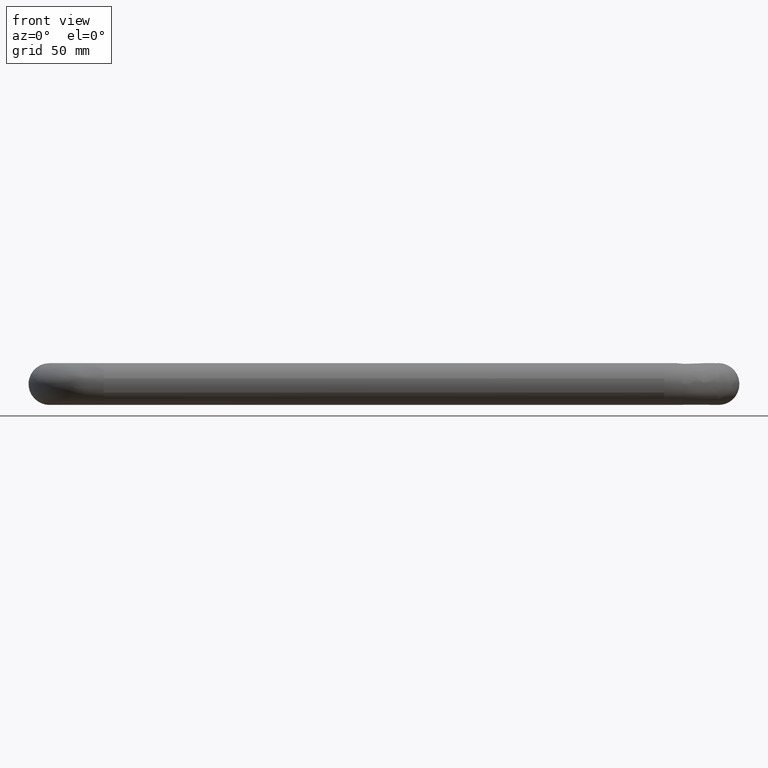
[diagram: clean part render]
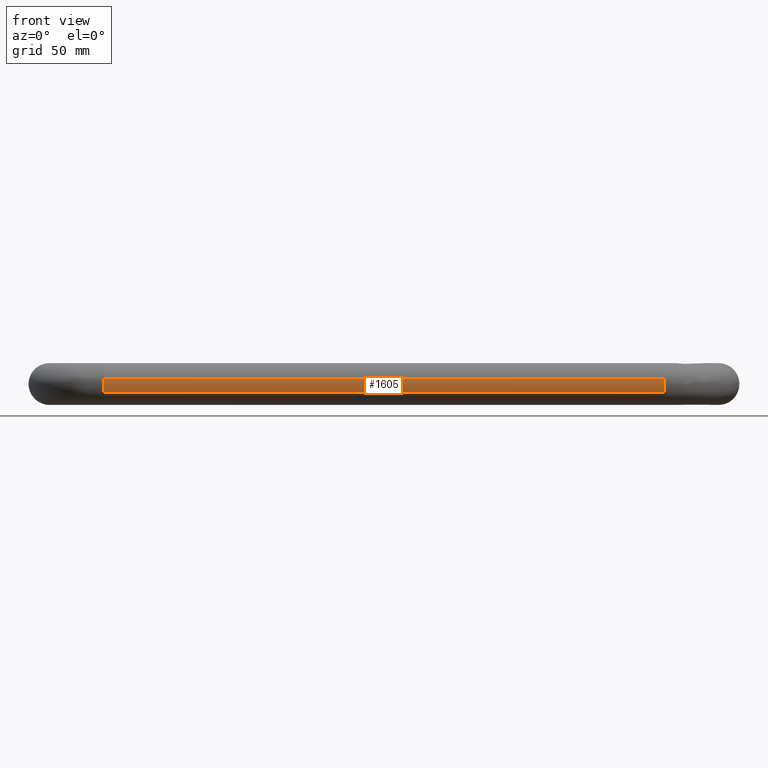
[diagram: same view with one face highlighted and labeled with its STEP entity id]
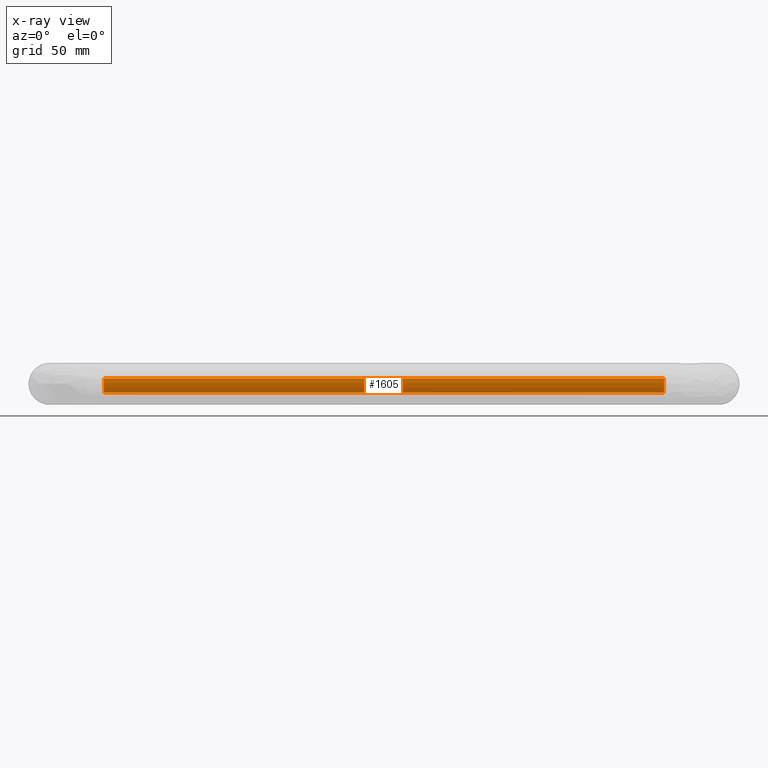
[diagram: x-ray of the same camera — body ghosted, the highlighted face saturated]
A machine part, front view. The second image highlights one B-rep face of the part: STEP entity #1605.
The next image is the same camera in x-ray: the body ghosted, the highlighted face saturated — about 0% of this face is hidden behind the body in this view.
In plain terms, the highlighted face is a freeform B-spline surface patch.
Its self-contained STEP definition (entity closure, byte-faithful):
#1386=CARTESIAN_POINT('',(367.499999999861190,-98.936217568713488,-5.046080431050863));
#1387=VERTEX_POINT('',#1386);
#1403=CARTESIAN_POINT('',(32.500000000000000,-98.936217568845137,-5.046080431189905));
#1404=VERTEX_POINT('',#1403);
#1405=CARTESIAN_POINT('',(32.500000000000000,-98.936217568845137,-5.046080431189905));
#1406=CARTESIAN_POINT('',(367.499999999861190,-98.936217568713488,-5.046080431050863));
#1407=QUASI_UNIFORM_CURVE('',1,(#1405,#1406),.UNSPECIFIED.,.F.,.U.);
#1408=EDGE_CURVE('',#1404,#1387,#1407,.T.);
#1472=CARTESIAN_POINT('',(32.500000000000000,-99.545380664979035,3.340479701442447));
#1473=VERTEX_POINT('',#1472);
#1487=CARTESIAN_POINT('',(367.500000000000000,-99.545380664979035,3.340479701442447));
#1488=VERTEX_POINT('',#1487);
#1489=CARTESIAN_POINT('',(32.500000000000000,-99.545380664979035,3.340479701442447));
#1490=CARTESIAN_POINT('',(367.500000000000000,-99.545380664979035,3.340479701442447));
#1491=QUASI_UNIFORM_CURVE('',1,(#1489,#1490),.UNSPECIFIED.,.F.,.U.);
#1492=EDGE_CURVE('',#1473,#1488,#1491,.T.);
#1557=CARTESIAN_POINT('',(24.124999997582432,-99.545380665107785,3.340479700978208));
#1558=CARTESIAN_POINT('',(24.124999997582428,-100.738448257974080,-0.961583056975440));
#1559=CARTESIAN_POINT('',(24.124999997582421,-98.936217568948393,-5.046080430955922));
#1560=CARTESIAN_POINT('',(376.084375000060500,-99.545380665107785,3.340479700978208));
#1561=CARTESIAN_POINT('',(376.084375000060500,-100.738448257974080,-0.961583056975440));
#1562=CARTESIAN_POINT('',(376.084375000060560,-98.936217568948393,-5.046080430955922));
#1570=(BOUNDED_SURFACE()B_SPLINE_SURFACE(2,1,((#1557,#1560),(#1558,#1561),(#1559,#1562)),.UNSPECIFIED.,.F.,.F.,.U.)B_SPLINE_SURFACE_WITH_KNOTS((3,3),(2,2),(0.0,9.090239577217549),(0.0,351.959375002478110),.UNSPECIFIED.)GEOMETRIC_REPRESENTATION_ITEM()RATIONAL_B_SPLINE_SURFACE(((1.0,1.0),(0.871126983722081,0.871126983722081),(0.855662221768731,0.855662221768731)))REPRESENTATION_ITEM('')SURFACE());
#1571=CARTESIAN_POINT('',(367.500000000000000,-99.545380664979035,3.340479701442448));
#1572=CARTESIAN_POINT('',(367.499999999999940,-99.999999999999986,1.701175339017228));
#1573=CARTESIAN_POINT('',(367.500000000000000,-99.999999999999986,0.0));
#1574=CARTESIAN_POINT('',(367.500000000000000,-99.999999999999986,-2.635170122638260));
#1575=CARTESIAN_POINT('',(367.499999999861190,-98.936217568713502,-5.046080431050863));
#1583=(BOUNDED_CURVE()B_SPLINE_CURVE(2,(#1571,#1572,#1573,#1574,#1575),.UNSPECIFIED.,.F.,.U.)B_SPLINE_CURVE_WITH_KNOTS((3,2,3),(0.204451173353575,0.250000000000000,0.318548117651566),.UNSPECIFIED.)CURVE()GEOMETRIC_REPRESENTATION_ITEM()RATIONAL_B_SPLINE_CURVE((0.912717717200867,0.946636230201411,1.0,0.919690884709718,0.883422078886728))REPRESENTATION_ITEM(''));
#1584=EDGE_CURVE('',#1488,#1387,#1583,.T.);
#1585=ORIENTED_EDGE('',*,*,#1584,.F.);
#1586=ORIENTED_EDGE('',*,*,#1492,.F.);
#1587=CARTESIAN_POINT('',(32.500000000000000,-99.545380664979035,3.340479701442448));
#1588=CARTESIAN_POINT('',(32.500000000000000,-99.999999999999986,1.701175339017228));
#1589=CARTESIAN_POINT('',(32.500000000000000,-99.999999999999986,0.0));
#1590=CARTESIAN_POINT('',(32.500000000000000,-99.999999999999986,-2.635170122917379));
#1591=CARTESIAN_POINT('',(32.500000000000000,-98.936217568845152,-5.046080431189905));
#1599=(BOUNDED_CURVE()B_SPLINE_CURVE(2,(#1587,#1588,#1589,#1590,#1591),.UNSPECIFIED.,.F.,.U.)B_SPLINE_CURVE_WITH_KNOTS((3,2,3),(0.204451173353575,0.250000000000000,0.318548117658244),.UNSPECIFIED.)CURVE()GEOMETRIC_REPRESENTATION_ITEM()RATIONAL_B_SPLINE_CURVE((0.912717717200867,0.946636230201411,1.0,0.919690884701895,0.883422078879661))REPRESENTATION_ITEM(''));
#1600=EDGE_CURVE('',#1473,#1404,#1599,.T.);
#1601=ORIENTED_EDGE('',*,*,#1600,.T.);
#1602=ORIENTED_EDGE('',*,*,#1408,.T.);
#1603=EDGE_LOOP('',(#1585,#1586,#1601,#1602));
#1604=FACE_OUTER_BOUND('',#1603,.T.);
#1605=ADVANCED_FACE('',(#1604),#1570,.T.);